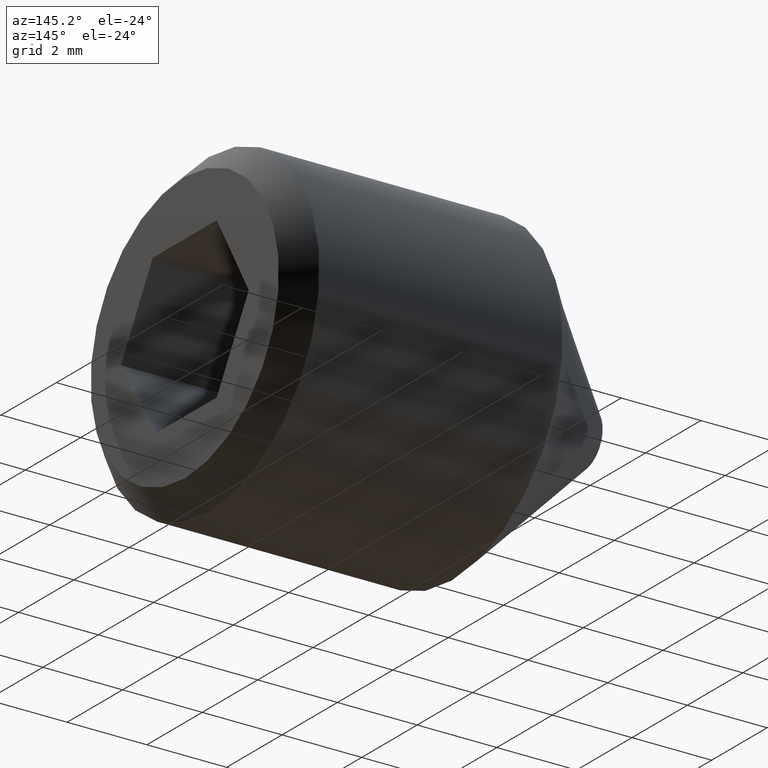
[diagram: clean part render]
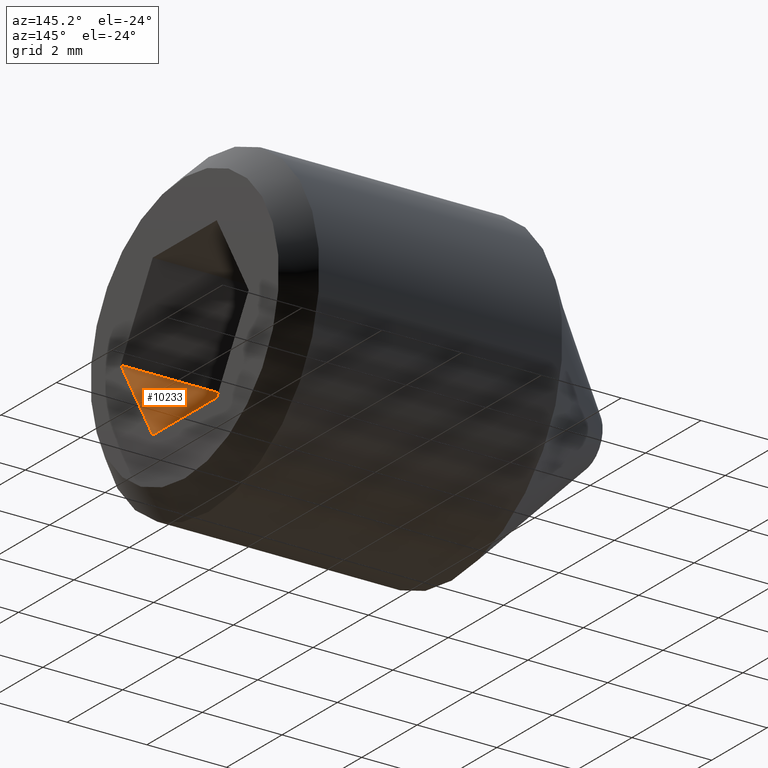
[diagram: same view with one face highlighted and labeled with its STEP entity id]
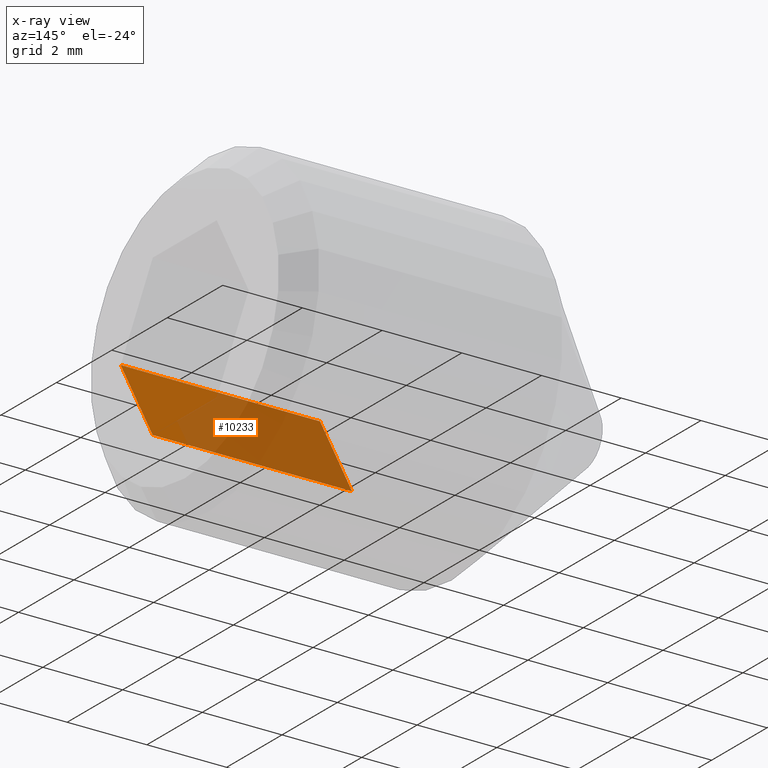
[diagram: x-ray of the same camera — body ghosted, the highlighted face saturated]
A machine part, auxiliary view. The second image highlights one B-rep face of the part: STEP entity #10233.
The next image is the same camera in x-ray: the body ghosted, the highlighted face saturated — about 71% of this face is hidden behind the body in this view.
In plain terms, the highlighted planar face has unit normal (0, -0.866, -0.5).
Its self-contained STEP definition (entity closure, byte-faithful):
#182 = DIRECTION ( 'NONE',  ( 1.000000000000000000, -0.0000000000000000000, 6.123031769111886300E-017 ) ) ;
#884 = CARTESIAN_POINT ( 'NONE',  ( 5.000000000000000000, -2.309401076758502500, 1.256016596573813500E-016 ) ) ;
#1100 = DIRECTION ( 'NONE',  ( 0.0000000000000000000, 0.4999999999999995600, -0.8660254037844389300 ) ) ;
#1318 = ORIENTED_EDGE ( 'NONE', *, *, #9707, .F. ) ;
#1788 = ORIENTED_EDGE ( 'NONE', *, *, #9029, .F. ) ;
#2243 = VERTEX_POINT ( 'NONE', #9139 ) ;
#2335 = EDGE_CURVE ( 'NONE', #2243, #6827, #6230, .T. ) ;
#2626 = ORIENTED_EDGE ( 'NONE', *, *, #2335, .T. ) ;
#2659 = EDGE_LOOP ( 'NONE', ( #5211, #1788, #1318, #2626 ) ) ;
#2666 = LINE ( 'NONE', #10458, #3645 ) ;
#2796 = VECTOR ( 'NONE', #9277, 1000.000000000000000 ) ;
#3645 = VECTOR ( 'NONE', #7593, 1000.000000000000000 ) ;
#3828 = VECTOR ( 'NONE', #182, 1000.000000000000000 ) ;
#4675 = AXIS2_PLACEMENT_3D ( 'NONE', #884, #8122, #10092 ) ;
#5211 = ORIENTED_EDGE ( 'NONE', *, *, #5233, .T. ) ;
#5233 = EDGE_CURVE ( 'NONE', #6827, #6535, #2666, .T. ) ;
#5352 = CARTESIAN_POINT ( 'NONE',  ( 10.00000000000000000, -1.154700538379252400, -1.999999999999999600 ) ) ;
#5644 = CARTESIAN_POINT ( 'NONE',  ( 5.000000000000000000, -2.309401076758502500, 1.256016596573813500E-016 ) ) ;
#6230 = LINE ( 'NONE', #6590, #3828 ) ;
#6485 = LINE ( 'NONE', #7553, #2796 ) ;
#6535 = VERTEX_POINT ( 'NONE', #5352 ) ;
#6576 = LINE ( 'NONE', #5644, #9976 ) ;
#6590 = CARTESIAN_POINT ( 'NONE',  ( 5.000000000000000000, -2.309401076758502500, 1.256016596573813500E-016 ) ) ;
#6827 = VERTEX_POINT ( 'NONE', #9159 ) ;
#7237 = PLANE ( 'NONE',  #4675 ) ;
#7553 = CARTESIAN_POINT ( 'NONE',  ( 5.000000000000000000, -1.154700538379252400, -2.000000000000000000 ) ) ;
#7588 = CARTESIAN_POINT ( 'NONE',  ( 5.000000000000000000, -1.154700538379252400, -2.000000000000000000 ) ) ;
#7593 = DIRECTION ( 'NONE',  ( 0.0000000000000000000, 0.4999999999999995600, -0.8660254037844389300 ) ) ;
#8122 = DIRECTION ( 'NONE',  ( 3.061515884555940100E-017, -0.8660254037844389300, -0.4999999999999995000 ) ) ;
#8134 = FACE_OUTER_BOUND ( 'NONE', #2659, .T. ) ;
#9029 = EDGE_CURVE ( 'NONE', #10561, #6535, #6485, .T. ) ;
#9139 = CARTESIAN_POINT ( 'NONE',  ( 5.000000000000000000, -2.309401076758502500, 1.256016596573813500E-016 ) ) ;
#9159 = CARTESIAN_POINT ( 'NONE',  ( 10.00000000000000000, -2.309401076758502900, 2.168404344971008900E-016 ) ) ;
#9277 = DIRECTION ( 'NONE',  ( 1.000000000000000000, -0.0000000000000000000, 6.123031769111886300E-017 ) ) ;
#9707 = EDGE_CURVE ( 'NONE', #2243, #10561, #6576, .T. ) ;
#9976 = VECTOR ( 'NONE', #1100, 1000.000000000000000 ) ;
#10092 = DIRECTION ( 'NONE',  ( 0.0000000000000000000, 0.4999999999999995000, -0.8660254037844389300 ) ) ;
#10233 = ADVANCED_FACE ( 'NONE', ( #8134 ), #7237, .F. ) ;
#10458 = CARTESIAN_POINT ( 'NONE',  ( 10.00000000000000000, -2.309401076758502500, 4.317532481129756600E-016 ) ) ;
#10561 = VERTEX_POINT ( 'NONE', #7588 ) ;